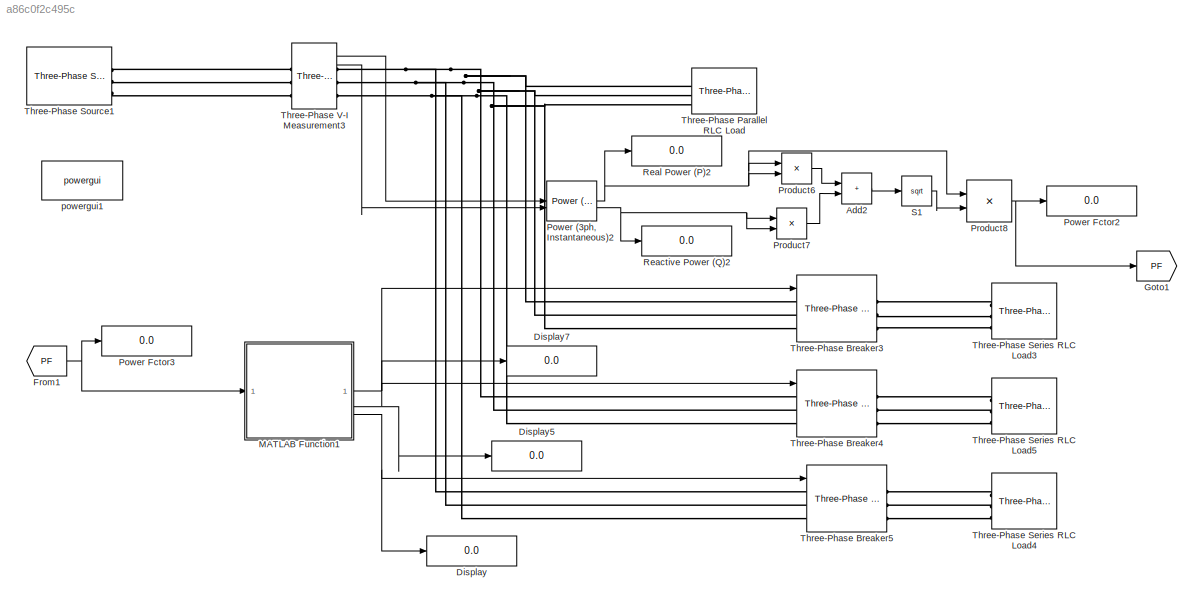
MODEL slx_a86c0f2c495c
KIND model
CONFIG AbsTol = auto
CONFIG EnableMultiTasking = off
CONFIG FixedStep = auto
CONFIG MaxStep = auto
CONFIG MinStep = auto
CONFIG RelTol = 1e-3
CONFIG SampleTimeConstraint = Unconstrained
CONFIG SolverName = VariableStepAuto
CONFIG StartTime = 0.0
CONFIG StopTime = 1
BLOCK [Sum] Add2
  IconShape = rectangular
BLOCK [Display] Display
  Decimation = 1
BLOCK [Display] Display5
  Decimation = 1
BLOCK [Display] Display7
  Decimation = 1
BLOCK [From] From1
  GotoTag = PF
BLOCK [Goto] Goto1
  GotoTag = PF
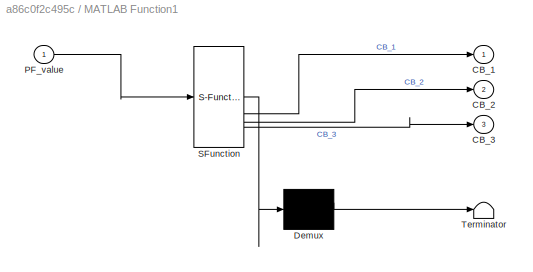
BLOCK [SubSystem] MATLAB Function1
  ErrorFcn = Stateflow.Translate.translate
  PermitHierarchicalResolution = ExplicitOnly
  SFBlockType = MATLAB Function
  TreatAsAtomicUnit = on
BLOCK [Demux] MATLAB Function1/ Demux 
  Outputs = 1
BLOCK [S-Function] MATLAB Function1/ SFunction 
  EnableBusSupport = on
  FunctionName = sf_sfun
  PortCounts = [1 4]
  SFcnIsStateOwnerBlock = off
  SFunctionDeploymentMode = off
  Tag = Stateflow S-Function 1
BLOCK [Terminator] MATLAB Function1/ Terminator 
BLOCK [Outport] MATLAB Function1/CB_1
BLOCK [Outport] MATLAB Function1/CB_2
  Port = 2
BLOCK [Outport] MATLAB Function1/CB_3
  Port = 3
BLOCK [Inport] MATLAB Function1/PF_value
BLOCK [Reference] Power (3ph, Instantaneous)2  REF=spsPower3phInstantaneousLib/Power
(3ph, Instantaneous)
  LibrarySourceBlock = sps_lib/Sensors and Measurements/Power\n(3ph, Instantaneous)
  SourceBlock = spsPower3phInstantaneousLib/Power\n(3ph, Instantaneous)
  SourceType = Power (3ph, Instantaneous)
BLOCK [Display] Power Fctor2
  Decimation = 1
BLOCK [Display] Power Fctor3
  Decimation = 1
BLOCK [Product] Product6
BLOCK [Product] Product7
BLOCK [Product] Product8
  Inputs = */
BLOCK [Display] Reactive Power (Q)2
  Decimation = 1
BLOCK [Display] Real Power (P)2
  Decimation = 1
BLOCK [Sqrt] S1
BLOCK [Reference] Three-Phase Breaker3  REF=spsThreePhaseBreakerLib/Three-Phase Breaker
  LibrarySourceBlock = sps_lib/Power Grid Elements/Three-Phase Breaker
  SourceBlock = spsThreePhaseBreakerLib/Three-Phase Breaker
  SourceType = Three-Phase Breaker
BLOCK [Reference] Three-Phase Breaker4  REF=spsThreePhaseBreakerLib/Three-Phase Breaker
  LibrarySourceBlock = sps_lib/Power Grid Elements/Three-Phase Breaker
  SourceBlock = spsThreePhaseBreakerLib/Three-Phase Breaker
  SourceType = Three-Phase Breaker
BLOCK [Reference] Three-Phase Breaker5  REF=spsThreePhaseBreakerLib/Three-Phase Breaker
  LibrarySourceBlock = sps_lib/Power Grid Elements/Three-Phase Breaker
  SourceBlock = spsThreePhaseBreakerLib/Three-Phase Breaker
  SourceType = Three-Phase Breaker
BLOCK [Reference] Three-Phase Parallel RLC Load  REF=spsThreePhaseParallelRLCLoadLib/Three-Phase
Parallel RLC Load
  AttributesFormatString = \n
  LibrarySourceBlock = sps_lib/Passives/Three-Phase\nParallel RLC Load
  NameLocation = right
  SourceBlock = spsThreePhaseParallelRLCLoadLib/Three-Phase\nParallel RLC Load
  SourceType = Three-Phase Parallel RLC Load
BLOCK [Reference] Three-Phase Series RLC Load3  REF=spsThreePhaseSeriesRLCLoadLib/Three-Phase
Series RLC Load
  AttributesFormatString = \n
  LibrarySourceBlock = sps_lib/Passives/Three-Phase\nSeries RLC Load
  NameLocation = right
  SourceBlock = spsThreePhaseSeriesRLCLoadLib/Three-Phase\nSeries RLC Load
  SourceType = Three-Phase Series RLC Load
BLOCK [Reference] Three-Phase Series RLC Load4  REF=spsThreePhaseSeriesRLCLoadLib/Three-Phase
Series RLC Load
  AttributesFormatString = \n
  LibrarySourceBlock = sps_lib/Passives/Three-Phase\nSeries RLC Load
  NameLocation = right
  SourceBlock = spsThreePhaseSeriesRLCLoadLib/Three-Phase\nSeries RLC Load
  SourceType = Three-Phase Series RLC Load
BLOCK [Reference] Three-Phase Series RLC Load5  REF=spsThreePhaseSeriesRLCLoadLib/Three-Phase
Series RLC Load
  AttributesFormatString = \n
  LibrarySourceBlock = sps_lib/Passives/Three-Phase\nSeries RLC Load
  NameLocation = right
  SourceBlock = spsThreePhaseSeriesRLCLoadLib/Three-Phase\nSeries RLC Load
  SourceType = Three-Phase Series RLC Load
BLOCK [Reference] Three-Phase Source1  REF=spsThreePhaseSourceLib/Three-Phase Source
  LibrarySourceBlock = sps_lib/Sources/Three-Phase Source
  SourceBlock = spsThreePhaseSourceLib/Three-Phase Source
  SourceType = Three-Phase Source
BLOCK [Reference] Three-Phase V-I Measurement3  REF=spsThreePhaseVIMeasurementLib/Three-Phase
V-I Measurement
  LibrarySourceBlock = sps_lib/Sensors and Measurements/Three-Phase\nV-I Measurement
  SourceBlock = spsThreePhaseVIMeasurementLib/Three-Phase\nV-I Measurement
  SourceType = Three-Phase VI Measurement
BLOCK [Reference] powergui1  REF=spspowerguiLib/powergui
  LibrarySourceBlock = sps_lib/powergui
  Priority = 1
  SourceBlock = spspowerguiLib/powergui
  SourceType = PSB option menu block
LINE Add2:1 -> S1:1
NET From1:1 -> MATLAB Function1:1, Power Fctor3:1
NET MATLAB Function1:1 -> Display7:1, Three-Phase Breaker3:1
NET MATLAB Function1:2 -> Display5:1, Three-Phase Breaker4:1
NET MATLAB Function1:3 -> Display:1, Three-Phase Breaker5:1
NET Power (3ph, Instantaneous)2:1 -> Product6:1, Product6:2, Product8:1, Real Power (P)2:1
NET Power (3ph, Instantaneous)2:2 -> Product7:1, Product7:2, Reactive Power (Q)2:1
LINE Product6:1 -> Add2:1
LINE Product7:1 -> Add2:2
NET Product8:1 -> Goto1:1, Power Fctor2:1
LINE S1:1 -> Product8:2
LINE Three-Phase V-I Measurement3:1 -> Power (3ph, Instantaneous)2:1
LINE Three-Phase V-I Measurement3:2 -> Power (3ph, Instantaneous)2:2
PNET net1: Three-Phase Breaker3:LConn1 -- Three-Phase Breaker4:LConn1 -- Three-Phase Breaker5:LConn1 -- Three-Phase Parallel RLC Load:LConn1 -- Three-Phase V-I Measurement3:RConn1
PNET net2: Three-Phase Breaker3:LConn2 -- Three-Phase Breaker4:LConn2 -- Three-Phase Breaker5:LConn2 -- Three-Phase Parallel RLC Load:LConn2 -- Three-Phase V-I Measurement3:RConn2
PNET net3: Three-Phase Breaker3:LConn3 -- Three-Phase Breaker4:LConn3 -- Three-Phase Breaker5:LConn3 -- Three-Phase Parallel RLC Load:LConn3 -- Three-Phase V-I Measurement3:RConn3
PLINE Three-Phase Breaker3:RConn1 -- Three-Phase Series RLC Load3:LConn1
PLINE Three-Phase Breaker3:RConn2 -- Three-Phase Series RLC Load3:LConn2
PLINE Three-Phase Breaker3:RConn3 -- Three-Phase Series RLC Load3:LConn3
PLINE Three-Phase Breaker4:RConn1 -- Three-Phase Series RLC Load5:LConn1
PLINE Three-Phase Breaker4:RConn2 -- Three-Phase Series RLC Load5:LConn2
PLINE Three-Phase Breaker4:RConn3 -- Three-Phase Series RLC Load5:LConn3
PLINE Three-Phase Breaker5:RConn1 -- Three-Phase Series RLC Load4:LConn1
PLINE Three-Phase Breaker5:RConn2 -- Three-Phase Series RLC Load4:LConn2
PLINE Three-Phase Breaker5:RConn3 -- Three-Phase Series RLC Load4:LConn3
PLINE Three-Phase Source1:RConn1 -- Three-Phase V-I Measurement3:LConn1
PLINE Three-Phase Source1:RConn2 -- Three-Phase V-I Measurement3:LConn2
PLINE Three-Phase Source1:RConn3 -- Three-Phase V-I Measurement3:LConn3
note: NET lines group one-source signal fan-out (src -> all destinations, sorted); 1:1 wires keep LINE; PNET lines group multi-terminal physical nets as a canonical sorted terminal list (undirected conserving connections); 2-terminal nets keep the pairwise PLINE form
CHART MATLAB Function1 states=1 transitions=1
  STATE_LABEL 'eML_blk_kernel()'
  STATE_LABEL 'SCRIPT:\nfunction [CB_1,CB_2,CB_3] = controller(PF_value)\n\nif (PF_value<=0.60)\n    CB_1=1;\n    CB_2=0;\n    CB_3=0;\n\nelseif (PF_value<=0.75)\n    CB_1=0;\n    CB_2=1;\n    CB_3=0;\n\nelseif (PF_value<=0.85)\n    CB_1=0;\n    CB_2=0;\n    CB_3=1;\nelse \n    CB_1=0;\n    CB_2=0;\n    CB_3=1;\nend\n\nend\n'
CHART  states=0 transitions=0
